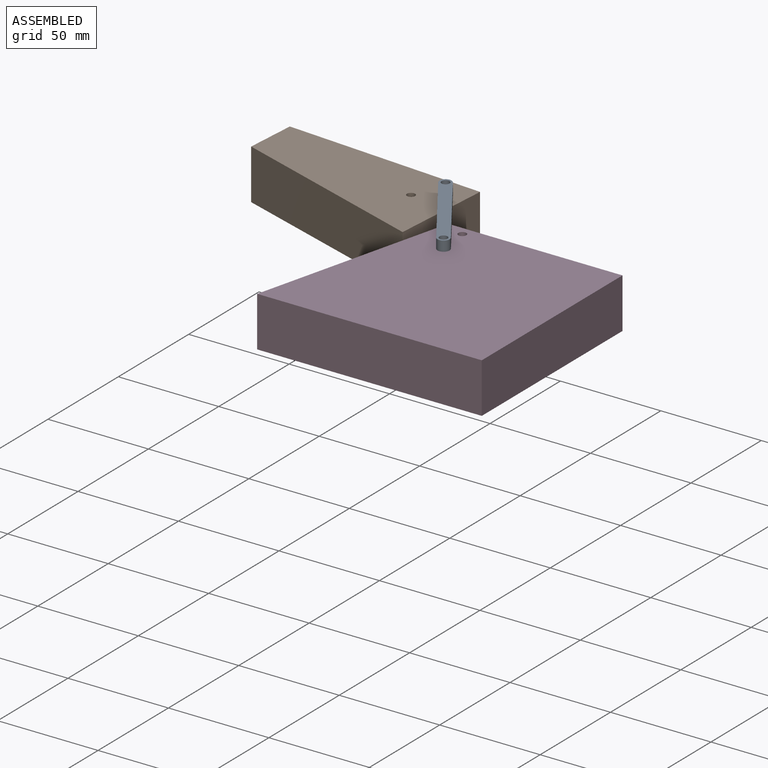
[diagram: assembled view]
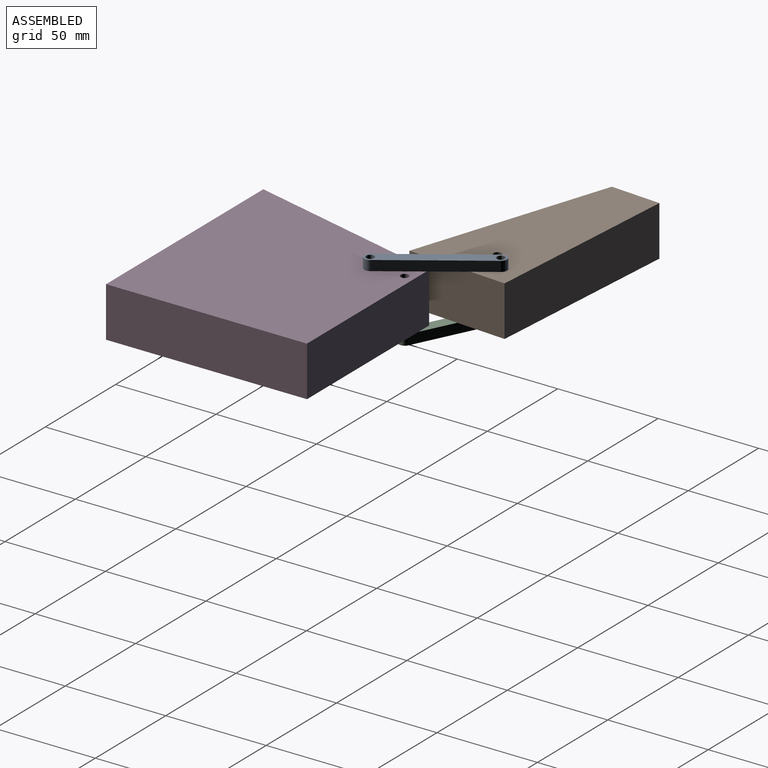
[diagram: assembled view, second angle]
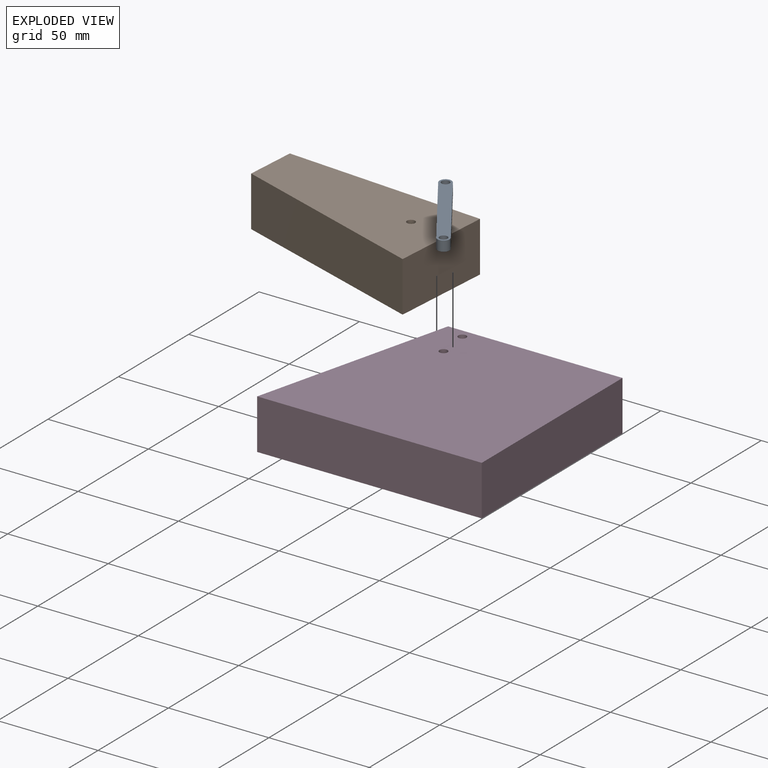
[diagram: exploded view]
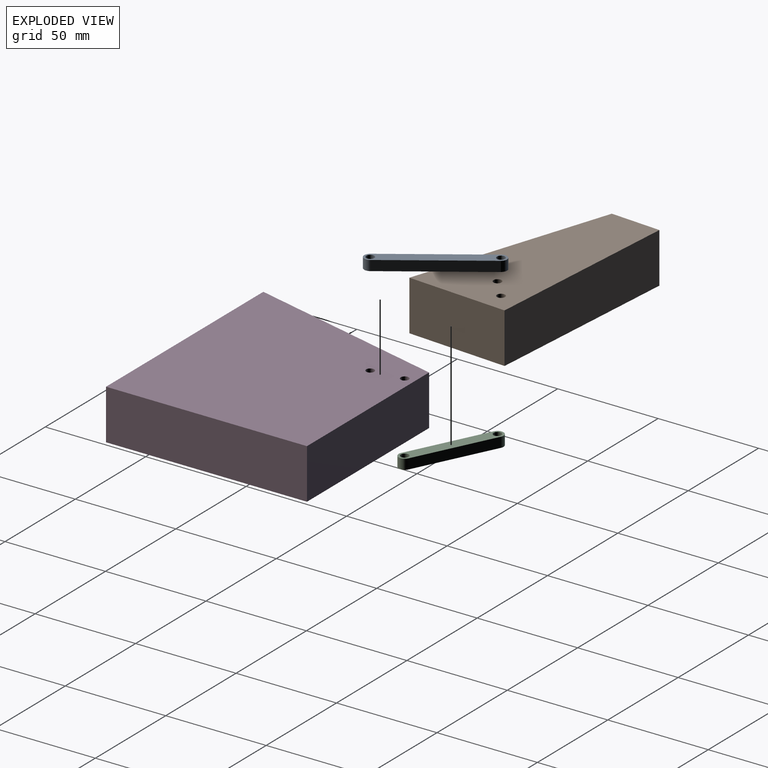
[diagram: exploded view, second angle]
ASSEMBLY  parts=4 mates=4
PART A: 8 faces, bbox 22.9x56.6x5 mm
  f0: plane 50.59x16.86mm, normal (-0.95,-0.32,0), area 266.6mm2, adj f1,f4,f6,f7
  f1: cylinder r=3mm len=5.85mm, axis (0,0,-1), area 47.1mm2, adj f0,f2,f6,f7
  f2: plane 50.59x16.86mm, normal (0.95,0.32,0), area 266.6mm2, adj f1,f4,f6,f7
  f3: cylinder r=2mm len=5mm, axis (0,0,-1), area 62.8mm2, adj f6,f7
  f4: cylinder r=3mm len=5.85mm, axis (0,0,-1), area 47.1mm2, adj f0,f2,f6,f7
  f5: cylinder r=2mm len=5mm, axis (0,0,-1), area 62.8mm2, adj f6,f7
  f6: plane 56.59x22.86mm, normal (0,0,1), area 323.1mm2, adj f0,f1,f2,f3,f4,f5
  f7: plane 56.59x22.86mm, normal (0,0,-1), area 323.1mm2, adj f0,f1,f2,f3,f4,f5
PART B: 8 faces, bbox 96.7x97.7x25 mm
  f0: plane 77.04x68.48mm, normal (-0.75,-0.66,0), area 2576.9mm2, adj f1,f4,f6,f7
  f1: plane 41.29x28.2mm, normal (0.83,-0.56,0), area 1250mm2, adj f0,f2,f6,f7
  f2: plane 82.58x56.4mm, normal (0.56,0.83,0), area 2500mm2, adj f1,f4,f6,f7
  f3: cylinder r=2mm len=25mm, axis (0,0,-1), area 314.2mm2, adj f6,f7
  f4: plane 25x20.64mm, normal (-0.83,0.56,0), area 625mm2, adj f0,f2,f6,f7
  f5: cylinder r=2mm len=25mm, axis (0,0,-1), area 314.2mm2, adj f6,f7
  f6: plane 97.69x96.68mm, normal (0,0,1), area 3724.9mm2, adj f0,f1,f2,f3,f4,f5
  f7: plane 97.69x96.68mm, normal (0,0,-1), area 3724.9mm2, adj f0,f1,f2,f3,f4,f5
PART C: 8 faces, bbox 35x38.1x5 mm
  f0: cylinder r=3mm len=5.23mm, axis (0,0,-1), area 47.1mm2, adj f1,f4,f6,f7
  f1: plane 32.05x28.97mm, normal (0.74,0.67,0), area 216mm2, adj f0,f2,f6,f7
  f2: cylinder r=3mm len=5.23mm, axis (0,0,-1), area 47.1mm2, adj f1,f4,f6,f7
  f3: cylinder r=2mm len=5mm, axis (0,0,-1), area 62.8mm2, adj f6,f7
  f4: plane 32.05x28.97mm, normal (-0.74,-0.67,0), area 216mm2, adj f0,f2,f6,f7
  f5: cylinder r=2mm len=5mm, axis (0,0,-1), area 62.8mm2, adj f6,f7
  f6: plane 38.05x34.97mm, normal (0,0,1), area 262.4mm2, adj f0,f1,f2,f3,f4,f5
  f7: plane 38.05x34.97mm, normal (0,0,-1), area 262.4mm2, adj f0,f1,f2,f3,f4,f5
PART D: 8 faces, bbox 111.8x100x25 mm
  f0: plane 100x25mm, normal (1,0,0), area 2500mm2, adj f1,f4,f6,f7
  f1: plane 86.79x25mm, normal (0,1,0), area 2169.8mm2, adj f0,f2,f6,f7
  f2: plane 100x25mm, normal (-0.97,0.24,0), area 2576.9mm2, adj f1,f4,f6,f7
  f3: cylinder r=2mm len=25mm, axis (0,0,-1), area 314.2mm2, adj f6,f7
  f4: plane 111.79x25mm, normal (0,-1,0), area 2794.8mm2, adj f0,f2,f6,f7
  f5: cylinder r=2mm len=25mm, axis (0,0,-1), area 314.2mm2, adj f6,f7
  f6: plane 111.79x100mm, normal (0,0,1), area 9904.2mm2, adj f0,f1,f2,f3,f4,f5
  f7: plane 111.79x100mm, normal (0,0,-1), area 9904.2mm2, adj f0,f1,f2,f3,f4,f5
PLACE A rot(axis=(0,0,1),15.7deg) t=(-5.73,0.2,25)mm
PLACE B rot(axis=(0,0,1),30.2deg) t=(-0.8,7.89,0)mm
PLACE C rot(axis=(0,0,1),21.8deg) t=(-2.17,1.65,-5)mm
PLACE D at identity fixed
MATE revolute B.f5 <-> C.f2  axis (0,0,-1) through (-44.19,14.18,0)mm
MATE revolute C.f0 <-> D.f5  axis (0,0,1) through (-5.38,-4.8,0)mm
MATE revolute A.f1 <-> D.f3  axis (0,0,1) through (-3.59,-20.72,25)mm
MATE revolute B.f3 <-> A.f3  axis (0,0,1) through (-33.49,23.43,25)mm
